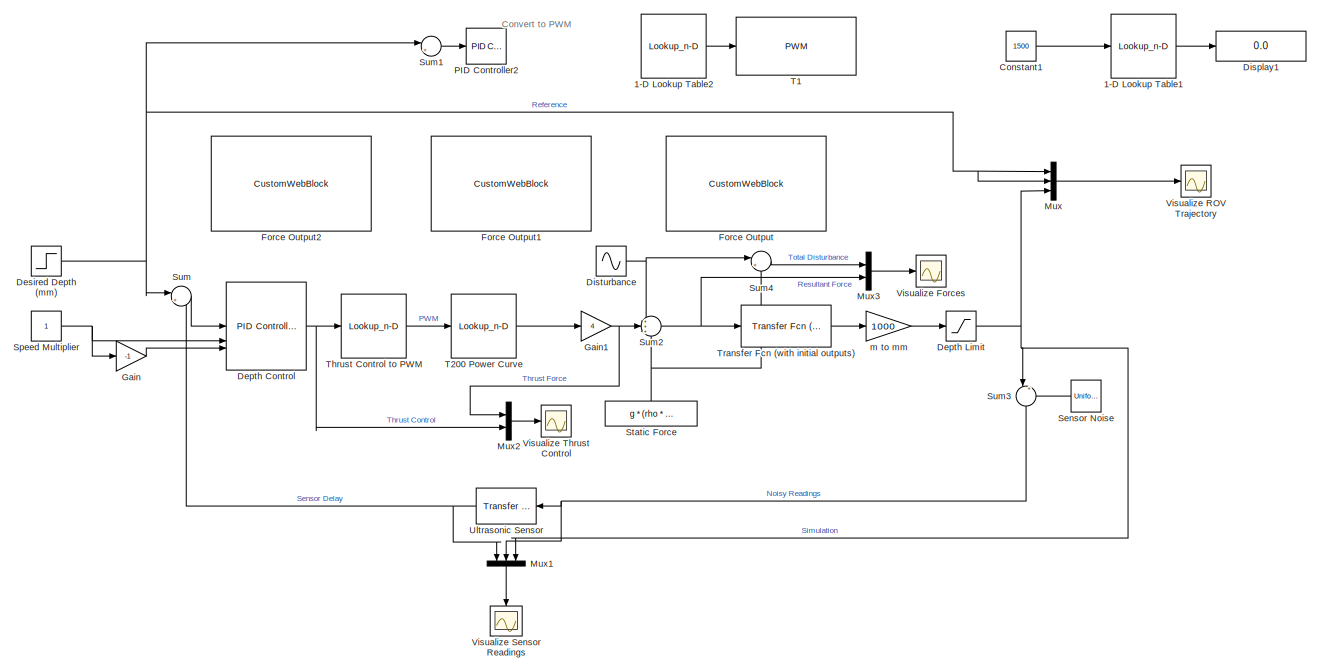
[diagram: root canvas - part 1/4, top center region]
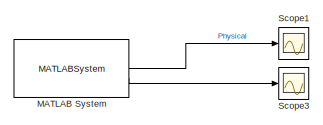
[diagram: root canvas - part 2/4, top left region]
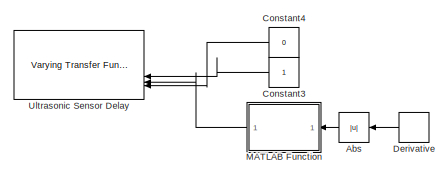
[diagram: root canvas - part 3/4, middle right region]
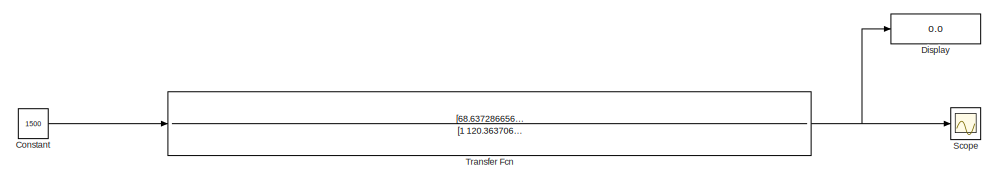
[diagram: root canvas - part 4/4, bottom center region]
MODEL slx_94ebbbffddaa
KIND model
CONFIG AbsTol = auto
CONFIG EnableMultiTasking = on
CONFIG FixedStep = auto
CONFIG MaxStep = auto
CONFIG MinStep = auto
CONFIG RelTol = 1e-3
CONFIG SampleTimeConstraint = Unconstrained
CONFIG SolverName = VariableStepAuto
CONFIG StartTime = 0.0
CONFIG StopTime = 50
BLOCK [Lookup_n-D] 1-D Lookup Table1
  BreakpointsForDimension1 = [1100:1900]
  InputPortMap = u0
  InternalRulePriority = Speed
  NumberOfTableDimensions = 1
  RndMeth = Simplest
  Table = linspace(0,255,801)
BLOCK [Lookup_n-D] 1-D Lookup Table2
  BreakpointsForDimension1 = [1100:1900]
  InputPortMap = u0
  InternalRulePriority = Speed
  NumberOfTableDimensions = 1
  RndMeth = Simplest
  Table = linspace(0,255,801)
BLOCK [Abs] Abs
  Commented = on
  NameLocation = top
  SaturateOnIntegerOverflow = off
BLOCK [Constant] Constant
  Commented = on
  Value = 1500
BLOCK [Constant] Constant1
  Value = 1500
BLOCK [Constant] Constant3
  Commented = on
  NameLocation = top
BLOCK [Constant] Constant4
  Commented = on
  NameLocation = top
  Value = 0
BLOCK [Reference] Depth Control  REF=slpidlib/PID Controller
  LibrarySourceBlock = simulink/Continuous/PID Controller
  SourceBlock = slpidlib/PID Controller
  SourceType = PID 1dof
BLOCK [Saturate] Depth Limit
  LowerLimit = 300
  UpperLimit = Inf
BLOCK [Derivative] Derivative
  Commented = on
  NameLocation = top
BLOCK [Step] Desired Depth (mm)
  After = 800
  Before = 500
  SampleTime = 0
  Time = 15
BLOCK [Display] Display
  Commented = on
  Decimation = 1
BLOCK [Display] Display1
  Decimation = 1
BLOCK [Sin] Disturbance 
  Amplitude = .25
  SampleTime = 0
BLOCK [CustomWebBlock] Force Output
  Configuration = {"components":[{"name":"CircularScaleComponent","settings":{"bounds":{"max":5,"min":-5,"tickInterval":"auto"},"direction":"cw","flipLimits":0,"innerRadius":0.75,"internalTickHeightScaleFactor":1,"labelColor":[255,255,200],"labelFont":{"font":"Arial","fontSize":12},"labelRadius":0.528,"labelTransparency":1,"minorTickHeightScaleFactor":0.2,"needleImage":{"size":[200,50],"src":"data:image\/svg+xml;ba...<+8209ch>
  LabelPosition = Bottom
  ShowInitialText = on
BLOCK [CustomWebBlock] Force Output1
  Configuration = {"components":[{"name":"CircularScaleComponent","settings":{"bounds":{"max":1900,"min":1100,"tickInterval":"auto"},"direction":"cw","flipLimits":0,"innerRadius":0.75,"internalTickHeightScaleFactor":1,"labelColor":[255,255,200],"labelFont":{"font":"Arial","fontSize":12},"labelRadius":0.528,"labelTransparency":1,"minorTickHeightScaleFactor":0.2,"needleImage":{"size":[200,50],"src":"data:image\/svg+x...<+8214ch>
  LabelPosition = Bottom
  ShowInitialText = on
BLOCK [CustomWebBlock] Force Output2
  Configuration = {"components":[{"name":"CircularScaleComponent","settings":{"bounds":{"max":1,"min":-1,"tickInterval":"auto"},"direction":"cw","flipLimits":0,"innerRadius":0.75,"internalTickHeightScaleFactor":1,"labelColor":[255,255,200],"labelFont":{"font":"Arial","fontSize":12},"labelRadius":0.528,"labelTransparency":1,"minorTickHeightScaleFactor":0.2,"needleImage":{"size":[200,50],"src":"data:image\/svg+xml;ba...<+8209ch>
  LabelPosition = Bottom
  ShowInitialText = on
BLOCK [Gain] Gain
  Gain = -1
BLOCK [Gain] Gain1
  Gain = 4
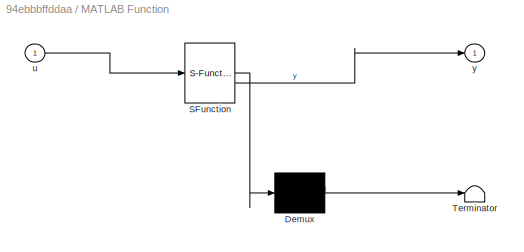
BLOCK [SubSystem] MATLAB Function
  Commented = on
  ErrorFcn = Stateflow.Translate.translate
  NameLocation = top
  PermitHierarchicalResolution = ExplicitOnly
  SFBlockType = MATLAB Function
  TreatAsAtomicUnit = on
BLOCK [Demux] MATLAB Function/ Demux 
  Outputs = 1
BLOCK [S-Function] MATLAB Function/ SFunction 
  EnableBusSupport = on
  FunctionName = sf_sfun
  PortCounts = [1 2]
  SFcnIsStateOwnerBlock = off
  SFunctionDeploymentMode = off
  Tag = Stateflow S-Function 2
BLOCK [Terminator] MATLAB Function/ Terminator 
BLOCK [Inport] MATLAB Function/u
BLOCK [Outport] MATLAB Function/y
BLOCK [MATLABSystem] MATLAB System
  MaskDisplay = color('white');plot([100,100,100,100]*1,[100,100,100,100]*1);plot([100,100,100,100]*0,[100,100,100,100]*0);color('blue');text(38, 92, 'IO Device Builder','horizontalAlignment', 'right');\ncolor('black');text(52,50,' Ping_v3','horizontalAlignment','center');\nport_label('output',1,'Distance');port_label('output',2,'Confidence');
  MaskType = Ping_v3
  SampleTime = -1
  System = Ping_v3
BLOCK [Mux] Mux
  DisplayOption = bar
  Inputs = 3
BLOCK [Mux] Mux1
  DisplayOption = bar
  Inputs = 3
  NameLocation = left
BLOCK [Mux] Mux2
  DisplayOption = bar
  Inputs = 2
BLOCK [Mux] Mux3
  DisplayOption = bar
  Inputs = 2
BLOCK [Reference] PID Controller2  REF=slpidlib/PID Controller
  LibrarySourceBlock = simulink/Continuous/PID Controller
  SourceBlock = slpidlib/PID Controller
  SourceType = PID 1dof
BLOCK [Scope] Scope
  Commented = on
  Floating = off
  NumInputPorts = 1
  ScopeSpecificationString = Simulink.scopes.TimeScopeBlockCfg('CurrentConfiguration', extmgr.ConfigurationSet(extmgr.Configuration('Core','General UI',true),extmgr.Configuration('Core','Source UI',true),extmgr.Configuration('Sources','WiredSimulink',true),extmgr.Configuration('Visuals','Time Domain',true,'SerializedDisplays',{struct('MinYLimReal','-6.88243','MaxYLimReal','61.94188','YLabelReal','','MinYLimMag','0.00000','Max...<+1336ch>
BLOCK [Scope] Scope1
  Floating = off
  NumInputPorts = 1
  ScopeSpecificationString = Simulink.scopes.TimeScopeBlockCfg('CurrentConfiguration', extmgr.ConfigurationSet(extmgr.Configuration('Core','General UI',true),extmgr.Configuration('Core','Source UI',true),extmgr.Configuration('Sources','WiredSimulink',true,'DataLoggingVariableName','ScopeData1'),extmgr.Configuration('Visuals','Time Domain',true,'SerializedDisplays',{struct('MinYLimReal','-1.00000','MaxYLimReal','1.00000','YLab...<+1486ch>
BLOCK [Scope] Scope3
  Floating = off
  NumInputPorts = 1
  ScopeSpecificationString = Simulink.scopes.TimeScopeBlockCfg('CurrentConfiguration', extmgr.ConfigurationSet(extmgr.Configuration('Core','General UI',true),extmgr.Configuration('Core','Source UI',true),extmgr.Configuration('Sources','WiredSimulink',true,'DataLoggingVariableName','ScopeData2'),extmgr.Configuration('Visuals','Time Domain',true,'SerializedDisplays',{struct('MinYLimReal','-10','MaxYLimReal','10','YLabelReal',''...<+879ch>
BLOCK [UniformRandomNumber] Sensor Noise
  Maximum = 5
  Minimum = -5
  NameLocation = top
  SampleTime = 2
BLOCK [Constant] Speed Multiplier
BLOCK [Constant] Static Force
  NameLocation = right
  Value = g * (rho * V - m)
BLOCK [Sum] Sum
  Inputs = |+-
BLOCK [Sum] Sum1
  Inputs = |+-
BLOCK [Sum] Sum2
  Inputs = +++
BLOCK [Sum] Sum3
  Inputs = |++
  NameLocation = left
BLOCK [Sum] Sum4
  Inputs = |++
BLOCK [Reference] T1  REF=arduinolib/PWM
  SourceBlock = arduinolib/PWM
  SourceType = Arduino PWM
BLOCK [Lookup_n-D] T200 Power Curve
  BreakpointsForDimension1 = [1100;1104;1108;1112;1116;1120;1124;1128;1132;1136;1140;1144;1148;1152;1156;1160;1164;1168;1172;1176;1180;1184;1188;1192;1196;1200;1204;1208;1212;1216;1220;1224;1228;1232;1236;1240;1244;1248;1252;1256;1260;1264;1268;1272;1276;1280;1284;1288;1292;1296;1300;1304;1308;1312;1316;1320;1324;1328;1332;1336;1340;1344;1348;1352;1356;1360;1364;1368;1372;1376;1380;1384;1388;1392;1396;1400;1404;1408;1412;1416...<+606ch>
  InputPortMap = u0
  InternalRulePriority = Speed
  NumberOfTableDimensions = 1
  OutDataTypeStr = double
  RndMeth = Simplest
  Table = [-34.500300000000003;-34.307499999999997;-34.262999999999998;-33.862499999999997;-33.372999999999998;-32.928100000000001;-32.305100000000003;-31.860099999999999;-31.281700000000001;-30.792200000000001;-30.3917;-29.991199999999999;-29.4573;-28.834299999999999;-28.3003;-27.944400000000002;-27.276900000000001;-27.0989;-26.386900000000001;-25.942;-25.452500000000001;-24.785;-24.429099999999998;-24.073...<+2646ch>
BLOCK [Lookup_n-D] Thrust Control to PWM
  BreakpointsForDimension1 = [-1:0.01:1]
  InputPortMap = u0
  InternalRulePriority = Speed
  NumberOfTableDimensions = 1
  RndMeth = Simplest
  Table = 1500 + 400 * ([-1:0.01:1])
BLOCK [TransferFcn] Transfer Fcn
  Commented = on
  Denominator = [1 120.363706413579 21504.5397613984 1582983.90041224 566215.169427592]
  Numerator = [68.6372866563244 45582.4520826474 19814.1337335844]
BLOCK [Reference] Transfer Fcn (with initial outputs)  REF=simulink_extras/Additional
Linear/Transfer Fcn
(with initial outputs)
  SourceBlock = simulink_extras/Additional\nLinear/Transfer Fcn\n(with initial outputs)
  SourceType = Transfer Function with Initial Outputs
BLOCK [Reference] Ultrasonic Sensor  REF=simulink_extras/Additional
Linear/Transfer Fcn
(with initial outputs)
  NameLocation = top
  SourceBlock = simulink_extras/Additional\nLinear/Transfer Fcn\n(with initial outputs)
  SourceType = Transfer Function with Initial Outputs
BLOCK [Reference] Ultrasonic Sensor Delay  REF=cstblocks/Linear Parameter Varying/Varying Transfer Function
  Commented = on
  NameLocation = top
  SourceBlock = cstblocks/Linear Parameter Varying/Varying Transfer Function
  SourceType = Varying Transfer Function
BLOCK [Scope] Visualize Forces
  Floating = off
  NumInputPorts = 1
  ScopeSpecificationString = Simulink.scopes.TimeScopeBlockCfg('CurrentConfiguration', extmgr.ConfigurationSet(extmgr.Configuration('Core','General UI',true),extmgr.Configuration('Core','Source UI',true),extmgr.Configuration('Sources','WiredSimulink',true,'DataLoggingVariableName','ScopeData3'),extmgr.Configuration('Visuals','Time Domain',true,'SerializedDisplays',{struct('MinYLimReal','-27.35662','MaxYLimReal','201.13171','Y...<+1547ch>
BLOCK [Scope] Visualize ROV Trajectory
  Floating = off
  NumInputPorts = 1
  ScopeSpecificationString = Simulink.scopes.TimeScopeBlockCfg('CurrentConfiguration', extmgr.ConfigurationSet(extmgr.Configuration('Core','General UI',true),extmgr.Configuration('Core','Source UI',true),extmgr.Configuration('Sources','WiredSimulink',true,'DataLoggingVariableName','ScopeData2'),extmgr.Configuration('Visuals','Time Domain',true,'SerializedDisplays',{struct('MinYLimReal','438.30899','MaxYLimReal','984.07567','Y...<+1570ch>
BLOCK [Scope] Visualize Sensor Readings
  Floating = off
  NameLocation = left
  NumInputPorts = 1
  ScopeSpecificationString = Simulink.scopes.TimeScopeBlockCfg('CurrentConfiguration', extmgr.ConfigurationSet(extmgr.Configuration('Core','General UI',true),extmgr.Configuration('Core','Source UI',true),extmgr.Configuration('Sources','WiredSimulink',true,'DataLoggingVariableName','ScopeData1'),extmgr.Configuration('Visuals','Time Domain',true,'SerializedDisplays',{struct('MinYLimReal','435.0622','MaxYLimReal','1009.61839','Y...<+1628ch>
BLOCK [Scope] Visualize Thrust Control
  Floating = off
  NumInputPorts = 1
  ScopeSpecificationString = Simulink.scopes.TimeScopeBlockCfg('CurrentConfiguration', extmgr.ConfigurationSet(extmgr.Configuration('Core','General UI',true),extmgr.Configuration('Core','Source UI',true),extmgr.Configuration('Sources','WiredSimulink',true,'DataLoggingVariableName','ScopeData2'),extmgr.Configuration('Visuals','Time Domain',true,'SerializedDisplays',{struct('MinYLimReal','-2.00272','MaxYLimReal','0.22564','YLab...<+1620ch>
BLOCK [Gain] m to mm
  Gain = 1000
ANNOTATION (root): Convert to PWM
LINE 1-D Lookup Table1:1 -> Display1:1
LINE 1-D Lookup Table2:1 -> T1:1
LINE Abs:1 -> MATLAB Function:1
LINE Constant1:1 -> 1-D Lookup Table1:1
LINE Constant3:1 -> Ultrasonic Sensor Delay:2
LINE Constant4:1 -> Ultrasonic Sensor Delay:4
LINE Constant:1 -> Transfer Fcn:1
NET Depth Control:1 -> Mux2:2, Thrust Control to PWM:1
NET Depth Limit:1 -> Mux1:3, Mux:3, Sum3:1
LINE Derivative:1 -> Abs:1
NET Desired Depth (mm):1 -> Mux:1, Mux:2, Sum1:1, Sum:1
NET Disturbance :1 -> Sum2:1, Sum4:1
NET Gain1:1 -> Mux2:1, Sum2:2
LINE Gain:1 -> Depth Control:3
LINE MATLAB Function:1 -> Ultrasonic Sensor Delay:3
LINE MATLAB System:1 -> Scope1:1
LINE MATLAB System:2 -> Scope3:1
LINE Mux1:1 -> Visualize Sensor Readings:1
LINE Mux2:1 -> Visualize Thrust Control:1
LINE Mux3:1 -> Visualize Forces:1
LINE Mux:1 -> Visualize ROV Trajectory:1
LINE Sensor Noise:1 -> Sum3:2
NET Speed Multiplier:1 -> Depth Control:2, Gain:1
NET Static Force:1 -> Sum2:3, Sum4:2
LINE Sum1:1 -> PID Controller2:1
NET Sum2:1 -> Mux3:2, Transfer Fcn (with initial outputs):1
NET Sum3:1 -> Mux1:2, Ultrasonic Sensor:1
LINE Sum4:1 -> Mux3:1
LINE Sum:1 -> Depth Control:1
LINE T200 Power Curve:1 -> Gain1:1
LINE Thrust Control to PWM:1 -> T200 Power Curve:1
LINE Transfer Fcn (with initial outputs):1 -> m to mm:1
NET Transfer Fcn:1 -> Display:1, Scope:1
NET Ultrasonic Sensor:1 -> Mux1:1, Sum:2
LINE m to mm:1 -> Depth Limit:1
note: NET lines group one-source signal fan-out (src -> all destinations, sorted); 1:1 wires keep LINE
CHART MATLAB Function states=1 transitions=1
  STATE_LABEL 'eML_blk_kernel()'
  STATE_LABEL 'SCRIPT:\nfunction y = fcn(u)\n    tau_min = 0.25;\n    tau_max = 2.0;\n    k = 1;\n    \n    y = tau_min + (tau_max - tau_min) * (u / (u + k));\nend'
CHART  states=0 transitions=0
